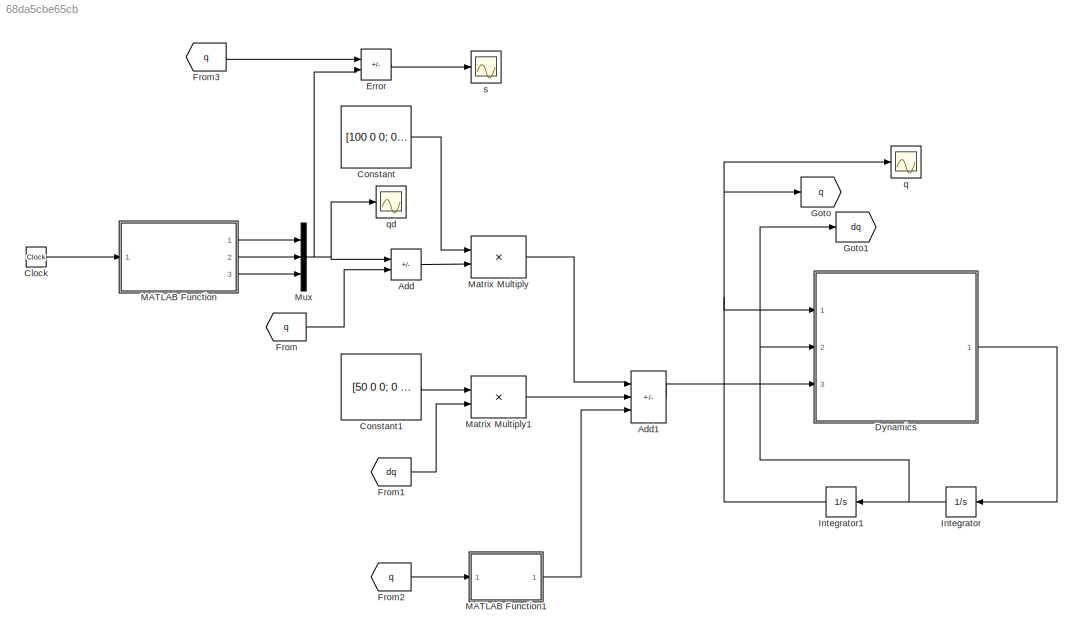
MODEL slx_68da5cbe65cb
KIND model
CONFIG AbsTol = auto
CONFIG EnableMultiTasking = off
CONFIG FixedStep = 0.001
CONFIG MaxStep = auto
CONFIG MinStep = auto
CONFIG RelTol = 1e-3
CONFIG SampleTimeConstraint = Unconstrained
CONFIG SolverName = FixedStepAuto
CONFIG StartTime = 0.0
CONFIG StopTime = 5
BLOCK [Sum] Add
  IconShape = rectangular
  Inputs = +-
  Ports = [2, 1]
BLOCK [Sum] Add1
  IconShape = rectangular
  Inputs = +-+
  Ports = [3, 1]
BLOCK [Clock] Clock
  Decimation = 5
BLOCK [Constant] Constant
  Value = [100 0 0; 0 100 0; 0 0 100]
BLOCK [Constant] Constant1
  Value = [50 0 0; 0 50 0; 0 0 50]
  VectorParams1D = off
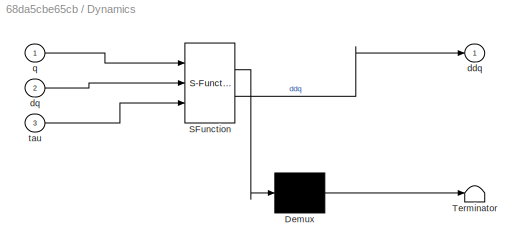
BLOCK [SubSystem] Dynamics
  ErrorFcn = Stateflow.Translate.translate
  PermitHierarchicalResolution = ExplicitOnly
  Ports = [3, 1]
  RequestExecContextInheritance = off
  SFBlockType = MATLAB Function
  TreatAsAtomicUnit = on
BLOCK [Demux] Dynamics/ Demux 
  Outputs = 1
  Ports = [1, 1]
BLOCK [S-Function] Dynamics/ SFunction 
  EnableBusSupport = on
  FunctionName = sf_sfun
  PortCounts = [3 2]
  Ports = [3, 2]
  SFcnIsStateOwnerBlock = off
  SFunctionDeploymentMode = off
  Tag = Stateflow S-Function 2
BLOCK [Terminator] Dynamics/ Terminator 
BLOCK [Outport] Dynamics/ddq
BLOCK [Inport] Dynamics/dq
  Port = 2
BLOCK [Inport] Dynamics/q
BLOCK [Inport] Dynamics/tau
  Port = 3
BLOCK [Sum] Error
  IconShape = rectangular
  Inputs = +-
  Ports = [2, 1]
BLOCK [From] From
  GotoTag = q
BLOCK [From] From1
  GotoTag = dq
BLOCK [From] From2
  GotoTag = q
BLOCK [From] From3
  GotoTag = q
BLOCK [Goto] Goto
  GotoTag = q
BLOCK [Goto] Goto1
  GotoTag = dq
BLOCK [Integrator] Integrator
  InitialCondition = [0; 0; 0]
  Ports = [1, 1]
BLOCK [Integrator] Integrator1
  InitialCondition = [0; 0; 0]
  Ports = [1, 1]
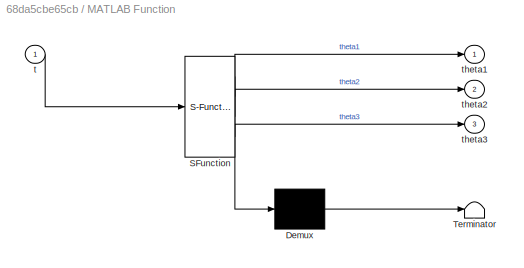
BLOCK [SubSystem] MATLAB Function
  ErrorFcn = Stateflow.Translate.translate
  PermitHierarchicalResolution = ExplicitOnly
  Ports = [1, 3]
  RequestExecContextInheritance = off
  SFBlockType = MATLAB Function
  TreatAsAtomicUnit = on
BLOCK [Demux] MATLAB Function/ Demux 
  Outputs = 1
  Ports = [1, 1]
BLOCK [S-Function] MATLAB Function/ SFunction 
  EnableBusSupport = on
  FunctionName = sf_sfun
  PortCounts = [1 4]
  Ports = [1, 4]
  SFcnIsStateOwnerBlock = off
  SFunctionDeploymentMode = off
  Tag = Stateflow S-Function 1
BLOCK [Terminator] MATLAB Function/ Terminator 
BLOCK [Inport] MATLAB Function/t
BLOCK [Outport] MATLAB Function/theta1
BLOCK [Outport] MATLAB Function/theta2
  Port = 2
BLOCK [Outport] MATLAB Function/theta3
  Port = 3
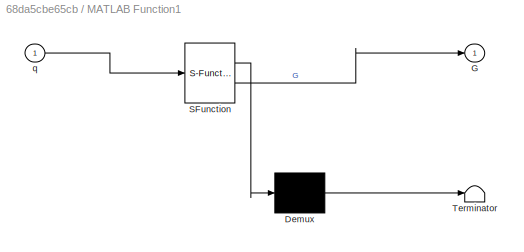
BLOCK [SubSystem] MATLAB Function1
  ErrorFcn = Stateflow.Translate.translate
  PermitHierarchicalResolution = ExplicitOnly
  Ports = [1, 1]
  RequestExecContextInheritance = off
  SFBlockType = MATLAB Function
  TreatAsAtomicUnit = on
BLOCK [Demux] MATLAB Function1/ Demux 
  Outputs = 1
  Ports = [1, 1]
BLOCK [S-Function] MATLAB Function1/ SFunction 
  EnableBusSupport = on
  FunctionName = sf_sfun
  PortCounts = [1 2]
  Ports = [1, 2]
  SFcnIsStateOwnerBlock = off
  SFunctionDeploymentMode = off
  Tag = Stateflow S-Function 3
BLOCK [Terminator] MATLAB Function1/ Terminator 
BLOCK [Outport] MATLAB Function1/G
BLOCK [Inport] MATLAB Function1/q
BLOCK [Product] Matrix Multiply
  Multiplication = Matrix(*)
  Ports = [2, 1]
BLOCK [Product] Matrix Multiply1
  Multiplication = Matrix(*)
  Ports = [2, 1]
BLOCK [Mux] Mux
  DisplayOption = bar
  Inputs = 3
  Ports = [3, 1]
BLOCK [Scope] q
  Floating = off
  NumInputPorts = 1
  Ports = [1]
  ScopeSpecificationString = Simulink.scopes.TimeScopeBlockCfg('CurrentConfiguration', extmgr.ConfigurationSet(extmgr.Configuration('Core','General UI',true),extmgr.Configuration('Core','Source UI',true),extmgr.Configuration('Sources','WiredSimulink',true),extmgr.Configuration('Visuals','Time Domain',true,'SerializedDisplays',{struct('MinYLimReal','-0.28845','MaxYLimReal','2.59602','YLabelReal','','MinYLimMag','0.00000','MaxY...<+1365ch>
BLOCK [Scope] qd
  Floating = off
  NumInputPorts = 1
  Ports = [1]
  ScopeSpecificationString = Simulink.scopes.TimeScopeBlockCfg('CurrentConfiguration', extmgr.ConfigurationSet(extmgr.Configuration('Core','General UI',true),extmgr.Configuration('Core','Source UI',true),extmgr.Configuration('Sources','WiredSimulink',true,'DataLoggingVariableName','ScopeData1'),extmgr.Configuration('Visuals','Time Domain',true,'SerializedDisplays',{struct('MinYLimReal','-0.32937','MaxYLimReal','2.96437','YLab...<+1431ch>
BLOCK [Scope] s
  Floating = off
  NumInputPorts = 1
  Ports = [1]
  ScopeSpecificationString = Simulink.scopes.TimeScopeBlockCfg('CurrentConfiguration', extmgr.ConfigurationSet(extmgr.Configuration('Core','General UI',true),extmgr.Configuration('Core','Source UI',true),extmgr.Configuration('Sources','WiredSimulink',true,'DataLoggingVariableName','ScopeData1'),extmgr.Configuration('Visuals','Time Domain',true,'SerializedDisplays',{struct('MinYLimReal','-0.39319','MaxYLimReal','0.04369','YLab...<+1412ch>
LINE Add1:1 -> Dynamics:3
LINE Add:1 -> Matrix Multiply:2
LINE Clock:1 -> MATLAB Function:1
LINE Constant1:1 -> Matrix Multiply1:1
LINE Constant:1 -> Matrix Multiply:1
LINE Dynamics:1 -> Integrator:1
LINE Error:1 -> s:1
LINE From1:1 -> Matrix Multiply1:2
LINE From2:1 -> MATLAB Function1:1
LINE From3:1 -> Error:1
LINE From:1 -> Add:2
NET Integrator1:1 -> Dynamics:1, Goto:1, q:1
NET Integrator:1 -> Dynamics:2, Goto1:1, Integrator1:1
LINE MATLAB Function1:1 -> Add1:3
LINE MATLAB Function:1 -> Mux:1
LINE MATLAB Function:2 -> Mux:2
LINE MATLAB Function:3 -> Mux:3
LINE Matrix Multiply1:1 -> Add1:2
LINE Matrix Multiply:1 -> Add1:1
NET Mux:1 -> Add:1, Error:2, qd:1
note: NET lines group one-source signal fan-out (src -> all destinations, sorted); 1:1 wires keep LINE
CHART MATLAB Function states=1 transitions=1
  STATE_LABEL 'eML_blk_kernel()'
  STATE_LABEL 'SCRIPT:\nfunction [theta1, theta2, theta3] = desiredTraj(t)\ntheta1 = 0.1309*t^2 + 0.0147*t^3 - 0.0085*t^4 + 0.0007*t^5;\ntheta2 = 0.1309*t^2 - 0.0188*t^3 - 0.001*t^4 + 0.0002*t^5;\ntheta3 = 0.1309*t^2 + 0.0314*t^3 - 0.0123*t^4 + 0.001*t^5;'
CHART Dynamics states=1 transitions=1
  STATE_LABEL 'eML_blk_kernel()'
  STATE_LABEL 'SCRIPT:\nfunction ddq = RobotDynamics(q, dq, tau)\n\nm1 = 1;\nm2 = 1;\nm3 = 1;\n\nl1 = 1;\nl2 = 1;\nl3 = 1;\n\nr1 = l1/2;\nr2 = l2/2;\nr3 = l3/2;\n\nR1 = 0.05;\nR2 = 0.05;\nR3 = 0.05;\n\ng = 9.81;\n\na1 = m2*r2^2 + m3*l2^2;\na2 = m3*r3^2;\na3 = m3*r3*l2;\nb1 = (m2*r2 + m3*l2)*g;\nb2 = m3*r3*g;\nI1 = 0.5*m1*R1^2;\nI2 = 0.5*m2*R2^2;\nI3 = 0.5*m3*R3^2;\n\nM11 = a1*cos(q(2))^2 + a2*cos(q(2) + q(3))^2 + 2*a3*cos(q(2))*cos(q(2) + q(...<+885ch>'
CHART MATLAB Function1 states=1 transitions=1
  STATE_LABEL 'eML_blk_kernel()'
  STATE_LABEL 'SCRIPT:\nfunction G = gravity(q)\n\nm1 = 1;\nm2 = 1;\nm3 = 1;\n\nl1 = 1;\nl2 = 1;\nl3 = 1;\n\nI1 = 0;\nI2 = 0;\nI3 = 0;\n\ng = 9.81;\n\nG11 = 0;\nG21 = m2*l2*sin(q(2))*g/2 - m3*l3*sin(q(2) + q(3))*g/2 - m3*l2*sin(q(2))*g;\nG31 = -m3*l3*sin(q(2) + q(3))*g/2;\nG = [G11; G21; G31];\n\nend\n'
CHART  states=0 transitions=0
CHART  states=0 transitions=0
CHART  states=0 transitions=0
